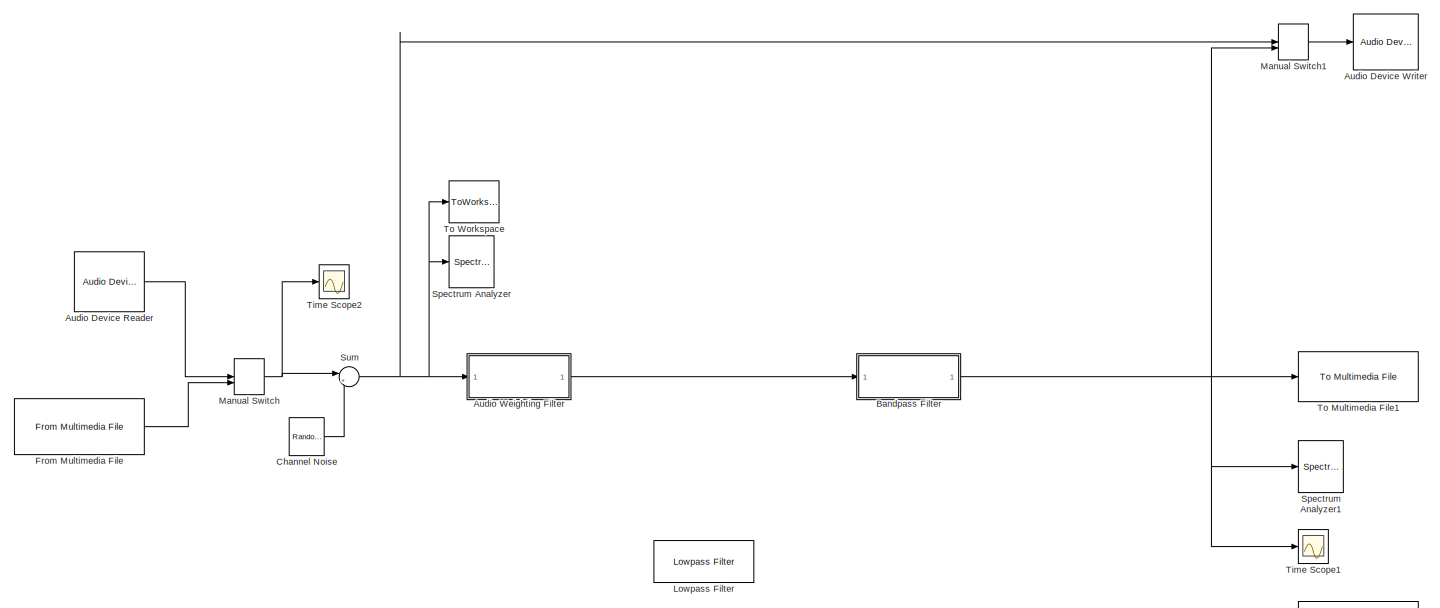
[diagram: root canvas - part 1/2, full width, top band]
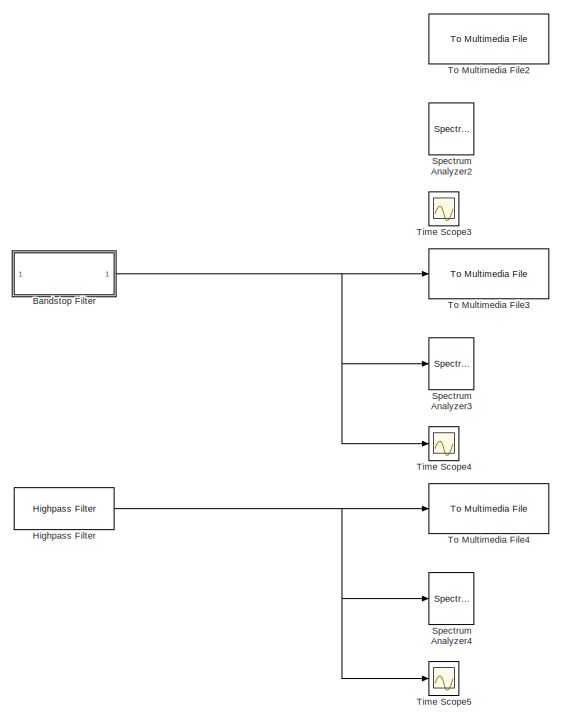
[diagram: root canvas - part 2/2, bottom right region]
MODEL slx_3298eab0335c
KIND model
CONFIG AbsTol = auto
CONFIG EnableMultiTasking = off
CONFIG FixedStep = auto
CONFIG MaxStep = auto
CONFIG MinStep = auto
CONFIG RelTol = 1e-3
CONFIG SampleTimeConstraint = Unconstrained
CONFIG Solver = VariableStepAuto
CONFIG SolverName = VariableStepAuto
CONFIG StartTime = 0.0
CONFIG StopTime = 4
BLOCK [Reference] Audio Device Reader  REF=audiosources/Audio Device
Reader
  Ports = [0, 1]
  SourceBlock = audiosources/Audio Device\nReader
  SourceProductBaseCode = AU
  SourceType = Audio Device Reader
BLOCK [Reference] Audio Device Writer  REF=dspsnks4/Audio Device
Writer
  Ports = [1]
  SourceBlock = dspsnks4/Audio Device\nWriter
  SourceProductBaseCode = DS
  SourceType = Audio Device Writer
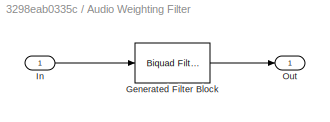
BLOCK [SubSystem] Audio Weighting Filter
  CopyFcn = fdesignblkfcn(gcbh, {'CopyFcn'});
  DialogController = fdesignblkfcn
  InitFcn = fdesignblkfcn(gcbh, {'InitFcn'});
  Ports = [1, 1]
  RequestExecContextInheritance = off
  UserDataPersistent = on
BLOCK [Reference] Audio Weighting Filter/Generated Filter Block  REF=dsparch4/Biquad Filter
  Ports = [1, 1]
  SourceBlock = dsparch4/Biquad Filter
  SourceProductBaseCode = DS
  SourceType = Biquad Filter
  Tag = BlockMethodSubSystem
  UserDataPersistent = on
BLOCK [Inport] Audio Weighting Filter/In
BLOCK [Outport] Audio Weighting Filter/Out
  VectorParamsAs1DForOutWhenUnconnected = off
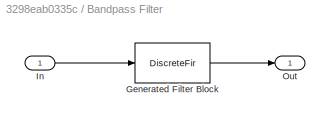
BLOCK [SubSystem] Bandpass Filter
  CopyFcn = fdesignblkfcn(gcbh, {'CopyFcn'});
  DialogController = fdesignblkfcn
  InitFcn = fdesignblkfcn(gcbh, {'InitFcn'});
  Ports = [1, 1]
  RequestExecContextInheritance = off
  UserDataPersistent = on
BLOCK [DiscreteFir] Bandpass Filter/Generated Filter Block
  Coefficients = [-0.0186837625677451769 -0.0116138989269169261 0.00822962473465216338 -0.00547573568862816124 0.00445155071872786485 0.000240892027910798168 0.00150359114776866393 0.00629624147279927819 -0.000551636308459416309 0.0111288984122155966 -3.93772626611204463e-05 0.0122887238045168677 0.00435040075459419869 0.00874210927395818564 0.0114609684872962227 0.00239865356772412178 0.0172370012745991855 -0.002...<+1437ch>
  InputPortMap = u0
  InputProcessing = Columns as channels (frame based)
  OutputPortMap = o0
  Ports = [1, 1]
  Tag = BlockMethodSubSystem
BLOCK [Inport] Bandpass Filter/In
BLOCK [Outport] Bandpass Filter/Out
  VectorParamsAs1DForOutWhenUnconnected = off
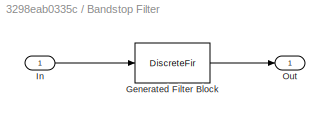
BLOCK [SubSystem] Bandstop Filter
  Commented = on
  CopyFcn = fdesignblkfcn(gcbh, {'CopyFcn'});
  DialogController = fdesignblkfcn
  InitFcn = fdesignblkfcn(gcbh, {'InitFcn'});
  Ports = [1, 1]
  RequestExecContextInheritance = off
  UserDataPersistent = on
BLOCK [DiscreteFir] Bandstop Filter/Generated Filter Block
  Coefficients = [-0.00049984690227566171 9.5100318056220678e-05 -0.018778888889125381 0.00020561736622238936 0.0019605411941885044 0.00023848464356614288 0.011427768692370117 0.00024928020776728103 -0.026344143468356181 0.00022323473160311075 0.033802321854574921 0.00024455404571586617 -0.019823660150560137 0.00024377045334422507 -0.019896328302992174 0.00022786848806407702 0.082714162332194516 0.0002565626127774...<+601ch>
  InputPortMap = u0
  InputProcessing = Columns as channels (frame based)
  OutputPortMap = o0
  Ports = [1, 1]
  Tag = BlockMethodSubSystem
BLOCK [Inport] Bandstop Filter/In
BLOCK [Outport] Bandstop Filter/Out
  VectorParamsAs1DForOutWhenUnconnected = off
BLOCK [Reference] Channel Noise  REF=dspsrcs4/Random
Source
  Diagnostics = AllowInheritedTsInSrc
  Ports = [0, 1]
  SourceBlock = dspsrcs4/Random\nSource
  SourceProductBaseCode = DS
  SourceType = Random Source
  UserDataPersistent = on
BLOCK [Reference] From Multimedia File  REF=dspvision/From Multimedia File
  Ports = [0, 1]
  SourceBlock = dspvision/From Multimedia File
  SourceProductBaseCode = DS,HW,VP
  SourceType = From Multimedia File
BLOCK [Reference] Highpass Filter  REF=dspfdesign/Highpass Filter
  Commented = on
  Ports = [1, 1]
  SourceBlock = dspfdesign/Highpass Filter
  SourceProductBaseCode = DS
  SourceType = dsp.HighpassFilter
BLOCK [Reference] Lowpass Filter  REF=dspfdesign/Lowpass Filter
  Commented = on
  Ports = [1, 1]
  SourceBlock = dspfdesign/Lowpass Filter
  SourceProductBaseCode = DS
  SourceType = dsp.LowpassFilter
BLOCK [ManualSwitch] Manual Switch
  CurrentSetting = 0
BLOCK [ManualSwitch] Manual Switch1
  CurrentSetting = 0
BLOCK [SpectrumAnalyzer] Spectrum Analyzer
  Ports = [1]
  ScopeSpecificationString = spbscopes.SpectrumAnalyzerBlockCfg('CurrentConfiguration', extmgr.ConfigurationSet(extmgr.Configuration('Core','General UI',true),extmgr.Configuration('Core','Source UI',true),extmgr.Configuration('Sources','WiredSimulink',true),extmgr.Configuration('Visuals','Spectrum',true,'AxesProperties',struct('Color',{[0 0 0],[0 0 0]},'XColor',{[0.686274509803922 0.686274509803922 0.686274509803922],[0.68627...<+2127ch>
BLOCK [SpectrumAnalyzer] Spectrum Analyzer1
  Ports = [1]
  ScopeSpecificationString = spbscopes.SpectrumAnalyzerBlockCfg('CurrentConfiguration', extmgr.ConfigurationSet(extmgr.Configuration('Core','General UI',true),extmgr.Configuration('Core','Source UI',true),extmgr.Configuration('Sources','WiredSimulink',true),extmgr.Configuration('Visuals','Spectrum',true,'AxesProperties',struct('Color',{[0 0 0],[0 0 0]},'XColor',{[0.686274509803922 0.686274509803922 0.686274509803922],[0.68627...<+2127ch>
BLOCK [SpectrumAnalyzer] Spectrum Analyzer2
  Commented = on
  Ports = [1]
  ScopeSpecificationString = spbscopes.SpectrumAnalyzerBlockCfg('CurrentConfiguration', extmgr.ConfigurationSet(extmgr.Configuration('Core','General UI',true),extmgr.Configuration('Core','Source UI',true),extmgr.Configuration('Sources','WiredSimulink',true),extmgr.Configuration('Visuals','Spectrum',true,'AxesProperties',struct('Color',{[0 0 0],[0 0 0]},'XColor',{[0.686274509803922 0.686274509803922 0.686274509803922],[0.68627...<+2107ch>  <repeated x3 — deduplicated; at blocks: Spectrum Analyzer2, Spectrum Analyzer3, Spectrum Analyzer4>
BLOCK [SpectrumAnalyzer] Spectrum Analyzer3
  Commented = on
  Ports = [1]
BLOCK [SpectrumAnalyzer] Spectrum Analyzer4
  Commented = on
  Ports = [1]
BLOCK [Sum] Sum
  Inputs = |++
  Ports = [2, 1]
BLOCK [Scope] Time Scope1
  DefaultConfigurationName = spbscopes.TimeScopeBlockCfg
  Floating = off
  NumInputPorts = 1
  Ports = [1]
  ScopeSpecificationString = spbscopes.TimeScopeBlockCfg('CurrentConfiguration', extmgr.ConfigurationSet(extmgr.Configuration('Core','General UI',true),extmgr.Configuration('Core','Source UI',true),extmgr.Configuration('Sources','WiredSimulink',true,'DataLoggingVariableName','ScopeData1'),extmgr.Configuration('Visuals','Time Domain',true,'DisplayPropertyDefaults',struct('MinYLimReal','-0.08486','MaxYLimReal','0.07655','YLabel...<+1399ch>
  UserDataPersistent = on
BLOCK [Scope] Time Scope2
  DefaultConfigurationName = spbscopes.TimeScopeBlockCfg
  Floating = off
  NumInputPorts = 1
  Ports = [1]
  ScopeSpecificationString = spbscopes.TimeScopeBlockCfg('CurrentConfiguration', extmgr.ConfigurationSet(extmgr.Configuration('Core','General UI',true),extmgr.Configuration('Core','Source UI',true),extmgr.Configuration('Sources','WiredSimulink',true),extmgr.Configuration('Visuals','Time Domain',true,'DisplayPropertyDefaults',struct('MinYLimReal','-0.08526','MaxYLimReal','0.07919','YLabelReal','Amplitude','MinYLimMag','0.00000...<+1356ch>
  UserDataPersistent = on
BLOCK [Scope] Time Scope3
  Commented = on
  DefaultConfigurationName = spbscopes.TimeScopeBlockCfg
  Floating = off
  NumInputPorts = 1
  Ports = [1]
  ScopeSpecificationString = spbscopes.TimeScopeBlockCfg('CurrentConfiguration', extmgr.ConfigurationSet(extmgr.Configuration('Core','General UI',true),extmgr.Configuration('Core','Source UI',true),extmgr.Configuration('Sources','WiredSimulink',true,'DataLoggingVariableName','ScopeData1'),extmgr.Configuration('Visuals','Time Domain',true,'DisplayPropertyDefaults',struct('MinYLimReal','-1.42635','MaxYLimReal','1.67425','YLabel...<+1401ch>
  UserDataPersistent = on
BLOCK [Scope] Time Scope4
  Commented = on
  DefaultConfigurationName = spbscopes.TimeScopeBlockCfg
  Floating = off
  NumInputPorts = 1
  Ports = [1]
  ScopeSpecificationString = spbscopes.TimeScopeBlockCfg('CurrentConfiguration', extmgr.ConfigurationSet(extmgr.Configuration('Core','General UI',true),extmgr.Configuration('Core','Source UI',true),extmgr.Configuration('Sources','WiredSimulink',true,'DataLoggingVariableName','ScopeData2'),extmgr.Configuration('Visuals','Time Domain',true,'DisplayPropertyDefaults',struct('MinYLimReal','-1.42635','MaxYLimReal','1.67425','YLabel...<+1401ch>
  UserDataPersistent = on
BLOCK [Scope] Time Scope5
  Commented = on
  DefaultConfigurationName = spbscopes.TimeScopeBlockCfg
  Floating = off
  NumInputPorts = 1
  Ports = [1]
  ScopeSpecificationString = spbscopes.TimeScopeBlockCfg('CurrentConfiguration', extmgr.ConfigurationSet(extmgr.Configuration('Core','General UI',true),extmgr.Configuration('Core','Source UI',true),extmgr.Configuration('Sources','WiredSimulink',true,'DataLoggingVariableName','ScopeData3'),extmgr.Configuration('Visuals','Time Domain',true,'DisplayPropertyDefaults',struct('MinYLimReal','-1.42635','MaxYLimReal','1.67425','YLabel...<+1401ch>
  UserDataPersistent = on
BLOCK [Reference] To Multimedia File1  REF=dspvision/To Multimedia File
  Commented = on
  Ports = [1]
  SourceBlock = dspvision/To Multimedia File
  SourceProductBaseCode = DS,HW,VP
  SourceType = To Multimedia File
BLOCK [Reference] To Multimedia File2  REF=dspvision/To Multimedia File
  Commented = on
  Ports = [1]
  SourceBlock = dspvision/To Multimedia File
  SourceProductBaseCode = DS,HW,VP
  SourceType = To Multimedia File
BLOCK [Reference] To Multimedia File3  REF=dspvision/To Multimedia File
  Commented = on
  Ports = [1]
  SourceBlock = dspvision/To Multimedia File
  SourceProductBaseCode = DS,HW,VP
  SourceType = To Multimedia File
BLOCK [Reference] To Multimedia File4  REF=dspvision/To Multimedia File
  Commented = on
  Ports = [1]
  SourceBlock = dspvision/To Multimedia File
  SourceProductBaseCode = DS,HW,VP
  SourceType = To Multimedia File
BLOCK [ToWorkspace] To Workspace
  MaxDataPoints = inf
  Ports = [1]
  SampleTime = -1
  Save2DSignal = 2-D array (concatenate along first dimension)
  VariableName = yout
LINE Audio Device Reader:1 -> Manual Switch:1
LINE Audio Weighting Filter:1 -> Bandpass Filter:1
NET Bandpass Filter:1 -> Manual Switch1:2, Spectrum Analyzer1:1, Time Scope1:1, To Multimedia File1:1
NET Bandstop Filter:1 -> Spectrum Analyzer3:1, Time Scope4:1, To Multimedia File3:1
LINE Channel Noise:1 -> Sum:2
LINE From Multimedia File:1 -> Manual Switch:2
NET Highpass Filter:1 -> Spectrum Analyzer4:1, Time Scope5:1, To Multimedia File4:1
LINE Manual Switch1:1 -> Audio Device Writer:1
NET Manual Switch:1 -> Sum:1, Time Scope2:1
NET Sum:1 -> Audio Weighting Filter:1, Manual Switch1:1, Spectrum Analyzer:1, To Workspace:1
note: NET lines group one-source signal fan-out (src -> all destinations, sorted); 1:1 wires keep LINE
